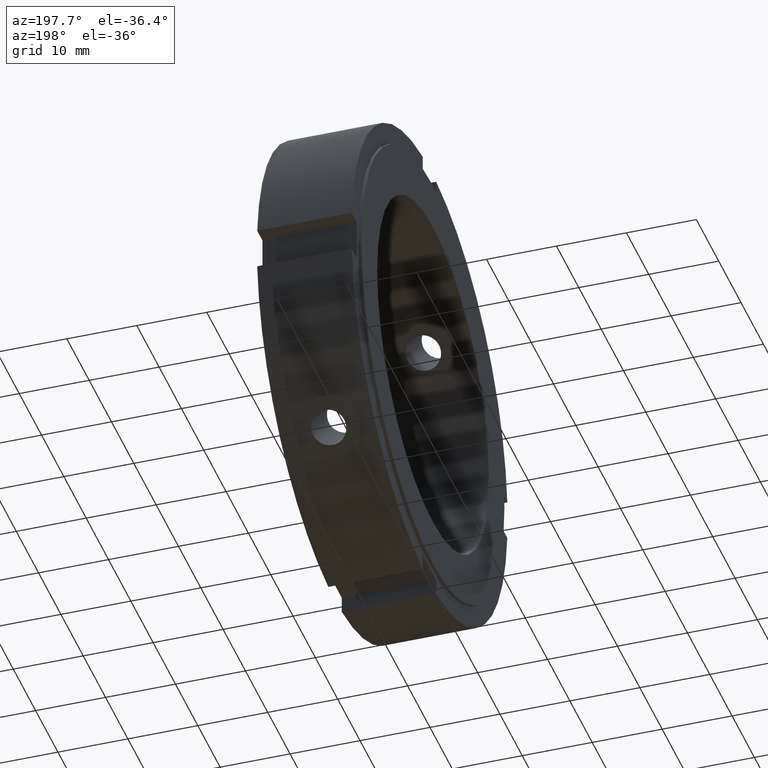
[diagram: clean part render]
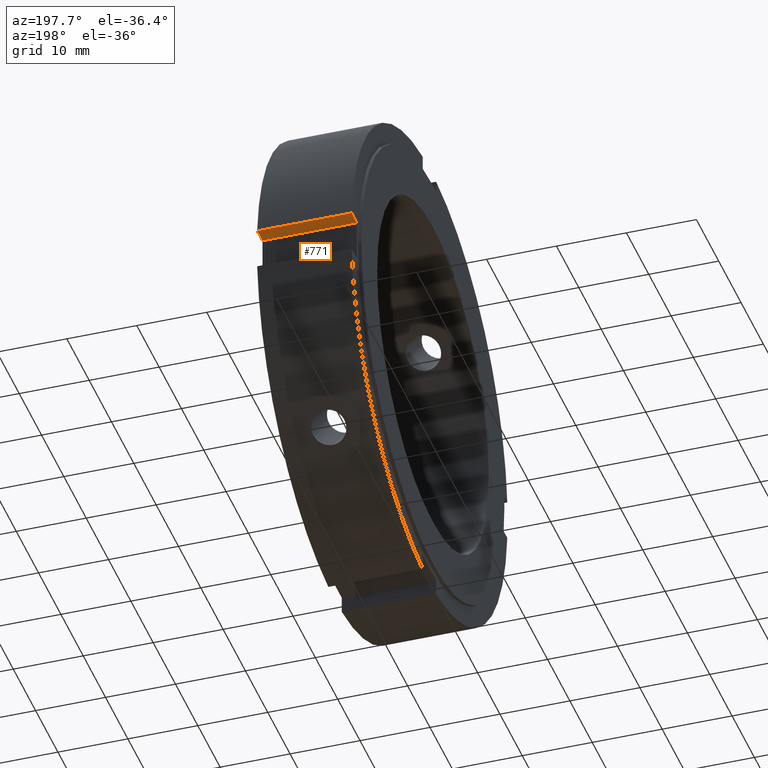
[diagram: same view with one face highlighted and labeled with its STEP entity id]
A machine part, auxiliary view. The second image highlights one B-rep face of the part: STEP entity #771.
In plain terms, the highlighted planar face has unit normal (0, 0, 1).
Its self-contained STEP definition (entity closure, byte-faithful):
#556=CARTESIAN_POINT('',(13.999999999999995,34.871191548325385,2.999999999999999));
#557=VERTEX_POINT('',#556);
#565=CARTESIAN_POINT('',(0.499999999999994,34.871191548325385,2.999999999999999));
#566=VERTEX_POINT('',#565);
#567=CARTESIAN_POINT('',(13.999999999999995,34.871191548325385,2.999999999999999));
#568=DIRECTION('',(-1.0,0.0,0.0));
#569=VECTOR('',#568,13.500000000000000);
#570=LINE('',#567,#569);
#571=EDGE_CURVE('',#557,#566,#570,.T.);
#687=CARTESIAN_POINT('',(13.999999999999995,32.500000000000000,2.999999999999999));
#688=VERTEX_POINT('',#687);
#695=CARTESIAN_POINT('',(13.999999999999995,32.500000000000000,2.999999999999999));
#696=DIRECTION('',(0.0,1.0,0.0));
#697=VECTOR('',#696,2.371191548325385);
#698=LINE('',#695,#697);
#699=EDGE_CURVE('',#688,#557,#698,.T.);
#748=CARTESIAN_POINT('',(13.999999999999995,35.0,2.999999999999999));
#749=DIRECTION('',(0.0,0.0,1.0));
#750=DIRECTION('',(1.0,0.0,0.0));
#751=AXIS2_PLACEMENT_3D('',#748,#749,#750);
#752=PLANE('',#751);
#753=CARTESIAN_POINT('',(0.499999999999994,32.500000000000000,2.999999999999999));
#754=VERTEX_POINT('',#753);
#755=CARTESIAN_POINT('',(0.499999999999993,34.871191548325385,2.999999999999999));
#756=DIRECTION('',(0.0,-1.0,0.0));
#757=VECTOR('',#756,2.371191548325385);
#758=LINE('',#755,#757);
#759=EDGE_CURVE('',#566,#754,#758,.T.);
#760=ORIENTED_EDGE('',*,*,#759,.F.);
#761=ORIENTED_EDGE('',*,*,#571,.F.);
#762=ORIENTED_EDGE('',*,*,#699,.F.);
#763=CARTESIAN_POINT('',(13.999999999999995,32.500000000000000,2.999999999999999));
#764=DIRECTION('',(-1.0,0.0,0.0));
#765=VECTOR('',#764,13.500000000000000);
#766=LINE('',#763,#765);
#767=EDGE_CURVE('',#688,#754,#766,.T.);
#768=ORIENTED_EDGE('',*,*,#767,.T.);
#769=EDGE_LOOP('',(#760,#761,#762,#768));
#770=FACE_OUTER_BOUND('',#769,.T.);
#771=ADVANCED_FACE('',(#770),#752,.F.);